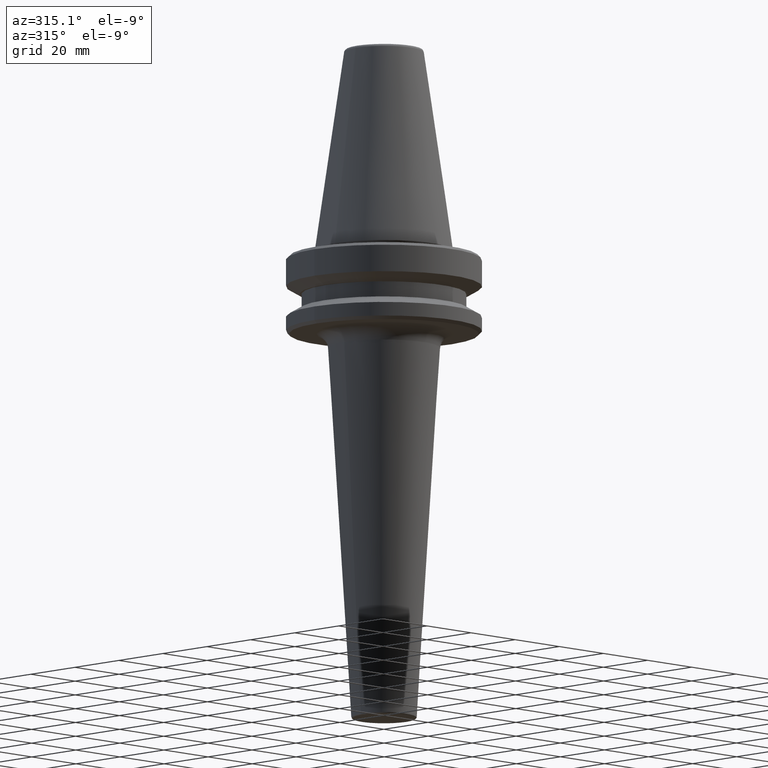
[diagram: clean part render]
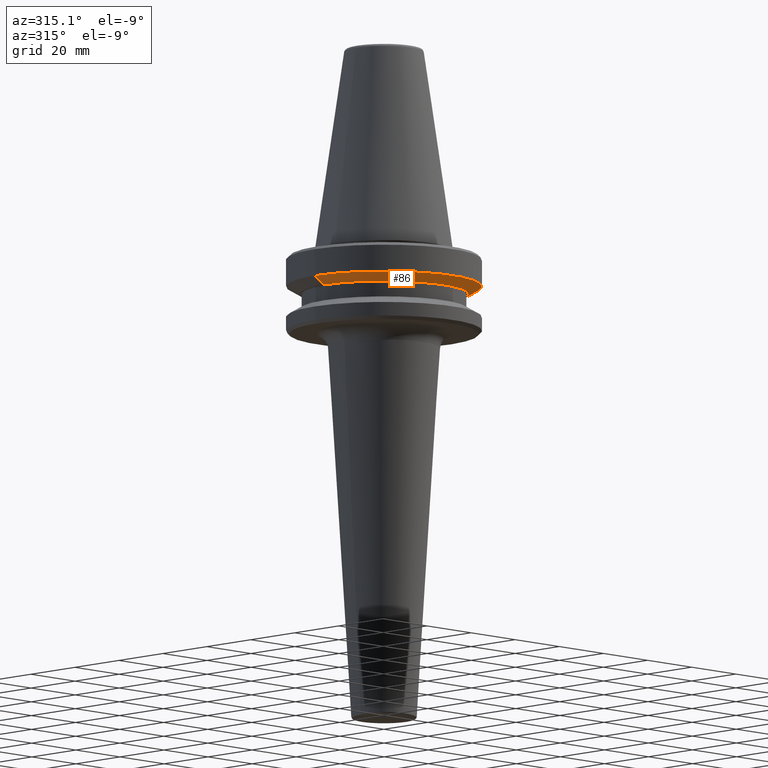
[diagram: same view with one face highlighted and labeled with its STEP entity id]
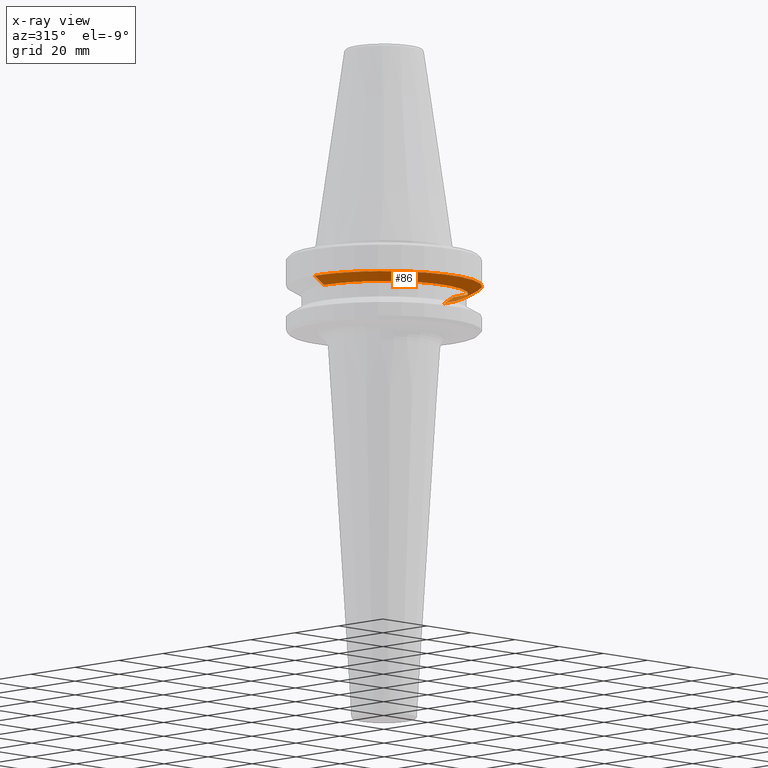
[diagram: x-ray of the same camera — body ghosted, the highlighted face saturated]
A machine part, auxiliary view. The second image highlights one B-rep face of the part: STEP entity #86.
The next image is the same camera in x-ray: the body ghosted, the highlighted face saturated — about 3% of this face is hidden behind the body in this view.
In plain terms, the highlighted conical surface has half-angle 60 deg.
Its self-contained STEP definition (entity closure, byte-faithful):
#15 = FACE_OUTER_BOUND ( 'NONE', #598, .T. ) ;
#21 = CIRCLE ( 'NONE', #886, 31.50000000000008500 ) ;
#43 = DIRECTION ( 'NONE',  ( 1.000000000000000000, 0.0000000000000000000, 0.0000000000000000000 ) ) ;
#74 = CARTESIAN_POINT ( 'NONE',  ( -31.50000000000008500, 3.857637417314172900E-015, -76.99985799368391800 ) ) ;
#86 = ADVANCED_FACE ( 'NONE', ( #15 ), #616, .T. ) ;
#123 = VERTEX_POINT ( 'NONE', #970 ) ;
#200 = EDGE_CURVE ( 'NONE', #123, #687, #966, .T. ) ;
#258 = VECTOR ( 'NONE', #750, 1000.000000000000100 ) ;
#308 = LINE ( 'NONE', #915, #258 ) ;
#315 = VECTOR ( 'NONE', #1039, 1000.000000000000100 ) ;
#371 = DIRECTION ( 'NONE',  ( 1.000000000000000000, 0.0000000000000000000, 0.0000000000000000000 ) ) ;
#381 = ORIENTED_EDGE ( 'NONE', *, *, #836, .T. ) ;
#440 = DIRECTION ( 'NONE',  ( 1.000000000000000000, 0.0000000000000000000, 0.0000000000000000000 ) ) ;
#459 = CARTESIAN_POINT ( 'NONE',  ( 0.0000000000000000000, 0.0000000000000000000, -79.50000000000012800 ) ) ;
#519 = AXIS2_PLACEMENT_3D ( 'NONE', #459, #918, #371 ) ;
#544 = ORIENTED_EDGE ( 'NONE', *, *, #200, .T. ) ;
#558 = ORIENTED_EDGE ( 'NONE', *, *, #902, .F. ) ;
#585 = DIRECTION ( 'NONE',  ( -0.0000000000000000000, -0.0000000000000000000, 1.000000000000000000 ) ) ;
#598 = EDGE_LOOP ( 'NONE', ( #972, #381, #544, #558 ) ) ;
#616 = CONICAL_SURFACE ( 'NONE', #828, 31.50000000000008500, 1.047197551196597400 ) ;
#668 = CARTESIAN_POINT ( 'NONE',  ( 0.0000000000000000000, 0.0000000000000000000, -76.99985799368391800 ) ) ;
#686 = CARTESIAN_POINT ( 'NONE',  ( 31.50000000000008500, 0.0000000000000000000, -76.99985799368391800 ) ) ;
#687 = VERTEX_POINT ( 'NONE', #686 ) ;
#722 = CIRCLE ( 'NONE', #519, 27.16962701892322600 ) ;
#730 = CARTESIAN_POINT ( 'NONE',  ( 0.0000000000000000000, 0.0000000000000000000, -76.99985799368391800 ) ) ;
#750 = DIRECTION ( 'NONE',  ( -0.8660254037844383700, 1.060575238724906500E-016, 0.5000000000000003300 ) ) ;
#807 = CARTESIAN_POINT ( 'NONE',  ( -27.16962701892322600, 3.592478546794674900E-015, -79.50000000000012800 ) ) ;
#828 = AXIS2_PLACEMENT_3D ( 'NONE', #730, #585, #43 ) ;
#836 = EDGE_CURVE ( 'NONE', #936, #123, #722, .T. ) ;
#886 = AXIS2_PLACEMENT_3D ( 'NONE', #668, #909, #440 ) ;
#894 = EDGE_CURVE ( 'NONE', #936, #971, #308, .T. ) ;
#902 = EDGE_CURVE ( 'NONE', #971, #687, #21, .T. ) ;
#909 = DIRECTION ( 'NONE',  ( -0.0000000000000000000, -0.0000000000000000000, 1.000000000000000000 ) ) ;
#915 = CARTESIAN_POINT ( 'NONE',  ( -31.50000000000008500, 3.857637417314172900E-015, -76.99985799368391800 ) ) ;
#918 = DIRECTION ( 'NONE',  ( -0.0000000000000000000, -0.0000000000000000000, 1.000000000000000000 ) ) ;
#926 = CARTESIAN_POINT ( 'NONE',  ( 31.50000000000008500, 0.0000000000000000000, -76.99985799368391800 ) ) ;
#936 = VERTEX_POINT ( 'NONE', #807 ) ;
#966 = LINE ( 'NONE', #926, #315 ) ;
#970 = CARTESIAN_POINT ( 'NONE',  ( 27.16962701892322600, 0.0000000000000000000, -79.50000000000012800 ) ) ;
#971 = VERTEX_POINT ( 'NONE', #74 ) ;
#972 = ORIENTED_EDGE ( 'NONE', *, *, #894, .F. ) ;
#1039 = DIRECTION ( 'NONE',  ( 0.8660254037844383700, 0.0000000000000000000, 0.5000000000000003300 ) ) ;